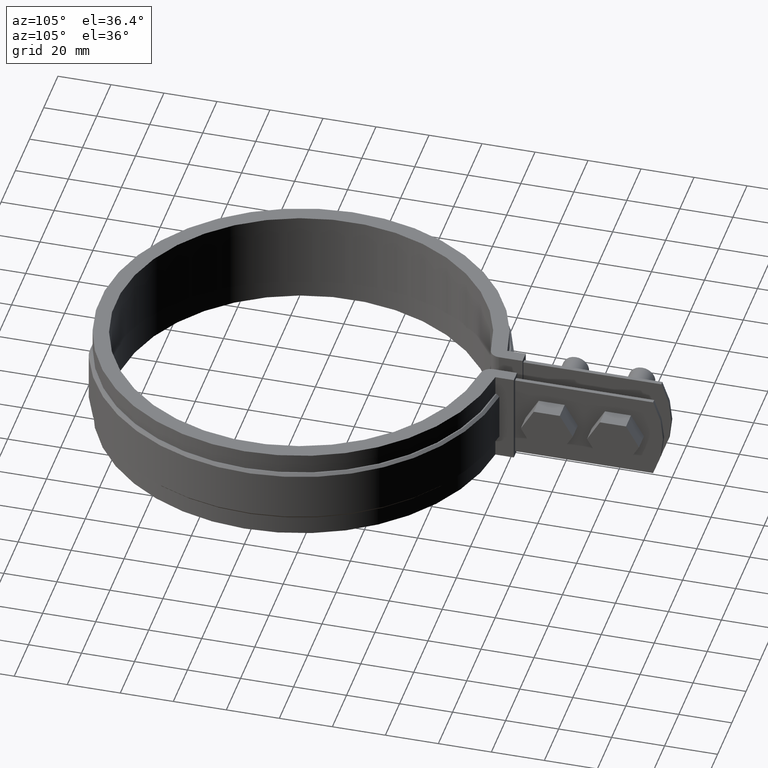
[diagram: clean part render]
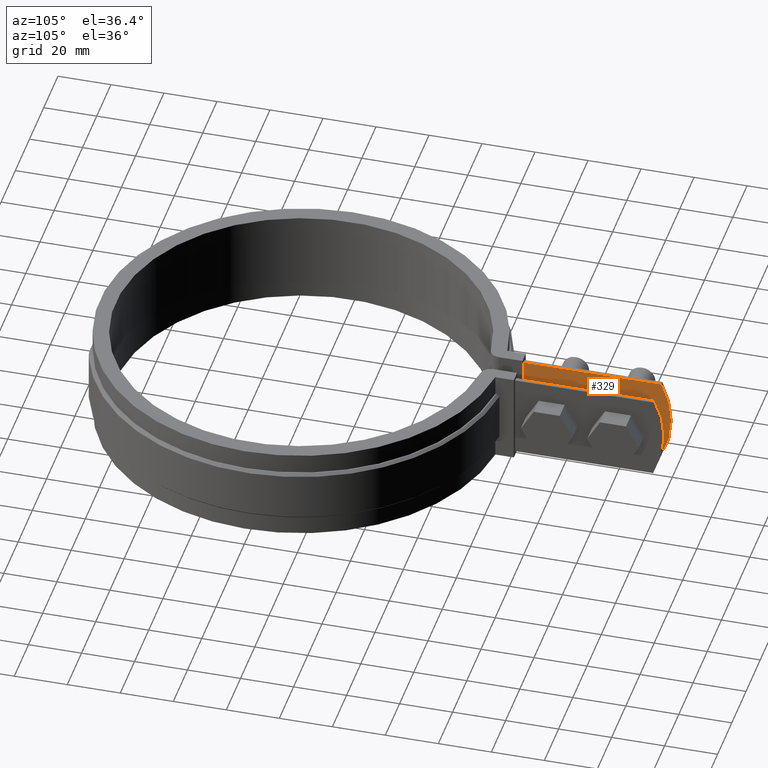
[diagram: same view with one face highlighted and labeled with its STEP entity id]
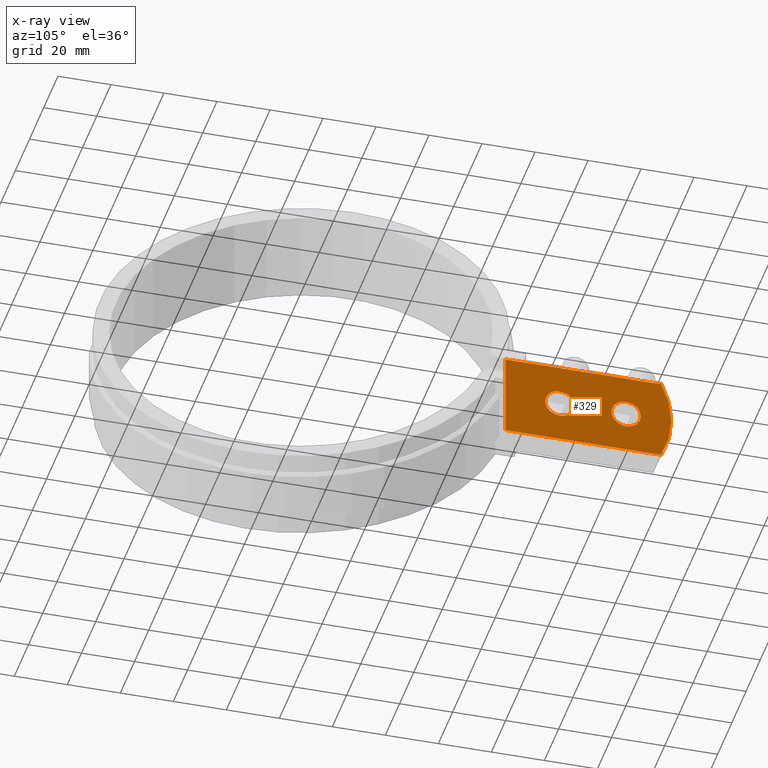
[diagram: x-ray of the same camera — body ghosted, the highlighted face saturated]
A machine part, auxiliary view. The second image highlights one B-rep face of the part: STEP entity #329.
The next image is the same camera in x-ray: the body ghosted, the highlighted face saturated — about 0% of this face is hidden behind the body in this view.
In plain terms, the highlighted planar face has unit normal (1, -0, 0).
Its self-contained STEP definition (entity closure, byte-faithful):
#329 = ADVANCED_FACE( '', ( #499, #500, #501 ), #502, .T. );
#499 = FACE_OUTER_BOUND( '', #1204, .T. );
#500 = FACE_BOUND( '', #1205, .T. );
#501 = FACE_BOUND( '', #1206, .T. );
#502 = PLANE( '', #1207 );
#1204 = EDGE_LOOP( '', ( #2403, #2404, #2405, #2406 ) );
#1205 = EDGE_LOOP( '', ( #2407 ) );
#1206 = EDGE_LOOP( '', ( #2408 ) );
#1207 = AXIS2_PLACEMENT_3D( '', #2409, #2410, #2411 );
#2403 = ORIENTED_EDGE( '', *, *, #4694, .T. );
#2404 = ORIENTED_EDGE( '', *, *, #4637, .T. );
#2405 = ORIENTED_EDGE( '', *, *, #4660, .T. );
#2406 = ORIENTED_EDGE( '', *, *, #4695, .F. );
#2407 = ORIENTED_EDGE( '', *, *, #4696, .T. );
#2408 = ORIENTED_EDGE( '', *, *, #4697, .T. );
#2409 = CARTESIAN_POINT( '', ( -4.99999999999999, 138.297380707447, 4.33680868994202E-016 ) );
#2410 = DIRECTION( '', ( 1.00000000000000, -6.02334540269725E-017, 0.000000000000000 ) );
#2411 = DIRECTION( '', ( 0.000000000000000, 0.000000000000000, 1.00000000000000 ) );
#4637 = EDGE_CURVE( '', #5046, #5061, #5063, .F. );
#4660 = EDGE_CURVE( '', #5061, #5103, #5105, .T. );
#4694 = EDGE_CURVE( '', #5162, #5046, #5163, .T. );
#4695 = EDGE_CURVE( '', #5162, #5103, #5164, .F. );
#4696 = EDGE_CURVE( '', #5165, #5165, #5166, .F. );
#4697 = EDGE_CURVE( '', #5167, #5167, #5168, .F. );
#5046 = VERTEX_POINT( '', #5783 );
#5061 = VERTEX_POINT( '', #5802 );
#5063 = LINE( '', #5804, #5805 );
#5103 = VERTEX_POINT( '', #6126 );
#5105 = LINE( '', #6128, #6129 );
#5162 = VERTEX_POINT( '', #6769 );
#5163 = CIRCLE( '', #6770, 36.0000000000000 );
#5164 = LINE( '', #6771, #6772 );
#5165 = VERTEX_POINT( '', #6773 );
#5166 = CIRCLE( '', #6774, 5.50000000000000 );
#5167 = VERTEX_POINT( '', #6775 );
#5168 = CIRCLE( '', #6776, 5.50000000000000 );
#5783 = CARTESIAN_POINT( '', ( -5.00000000000000, 134.546411700641, 1.08420217248553E-016 ) );
#5802 = CARTESIAN_POINT( '', ( -4.99999999999999, 75.7017172856733, 4.33680868994202E-016 ) );
#5804 = CARTESIAN_POINT( '', ( -4.99999999999999, 138.297380707447, 4.33680868994202E-016 ) );
#5805 = VECTOR( '', #8559, 1000.00000000000 );
#6126 = CARTESIAN_POINT( '', ( -4.99999999999999, 75.7017172856733, -32.0000000000000 ) );
#6128 = CARTESIAN_POINT( '', ( -4.99999999999999, 75.7017172856733, 4.33680868994202E-016 ) );
#6129 = VECTOR( '', #8580, 1000.00000000000 );
#6769 = CARTESIAN_POINT( '', ( -5.00000000000000, 134.546411700641, -32.0000000000000 ) );
#6770 = AXIS2_PLACEMENT_3D( '', #8599, #8600, #8601 );
#6771 = CARTESIAN_POINT( '', ( -4.99999999999999, 138.297380707447, -32.0000000000000 ) );
#6772 = VECTOR( '', #8602, 1000.00000000000 );
#6773 = CARTESIAN_POINT( '', ( -4.99999999999999, 126.797380707447, -16.0000000000000 ) );
#6774 = AXIS2_PLACEMENT_3D( '', #8603, #8604, #8605 );
#6775 = CARTESIAN_POINT( '', ( -4.99999999999999, 101.797380707447, -16.0000000000000 ) );
#6776 = AXIS2_PLACEMENT_3D( '', #8606, #8607, #8608 );
#8559 = DIRECTION( '', ( 6.02334540269725E-017, 1.00000000000000, 0.000000000000000 ) );
#8580 = DIRECTION( '', ( 0.000000000000000, 0.000000000000000, -1.00000000000000 ) );
#8599 = CARTESIAN_POINT( '', ( -5.00000000000000, 102.297380707447, -16.0000000000000 ) );
#8600 = DIRECTION( '', ( 1.00000000000000, -6.02334540269725E-017, 0.000000000000000 ) );
#8601 = DIRECTION( '', ( 6.02334540269725E-017, 1.00000000000000, 0.000000000000000 ) );
#8602 = DIRECTION( '', ( 6.02334540269725E-017, 1.00000000000000, 0.000000000000000 ) );
#8603 = CARTESIAN_POINT( '', ( -4.99999999999999, 121.297380707447, -16.0000000000000 ) );
#8604 = DIRECTION( '', ( 1.00000000000000, -6.02334540269725E-017, 0.000000000000000 ) );
#8605 = DIRECTION( '', ( 6.02334540269725E-017, 1.00000000000000, 0.000000000000000 ) );
#8606 = CARTESIAN_POINT( '', ( -4.99999999999999, 96.2973807074468, -16.0000000000000 ) );
#8607 = DIRECTION( '', ( 1.00000000000000, -6.02334540269725E-017, 0.000000000000000 ) );
#8608 = DIRECTION( '', ( 6.02334540269725E-017, 1.00000000000000, 0.000000000000000 ) );